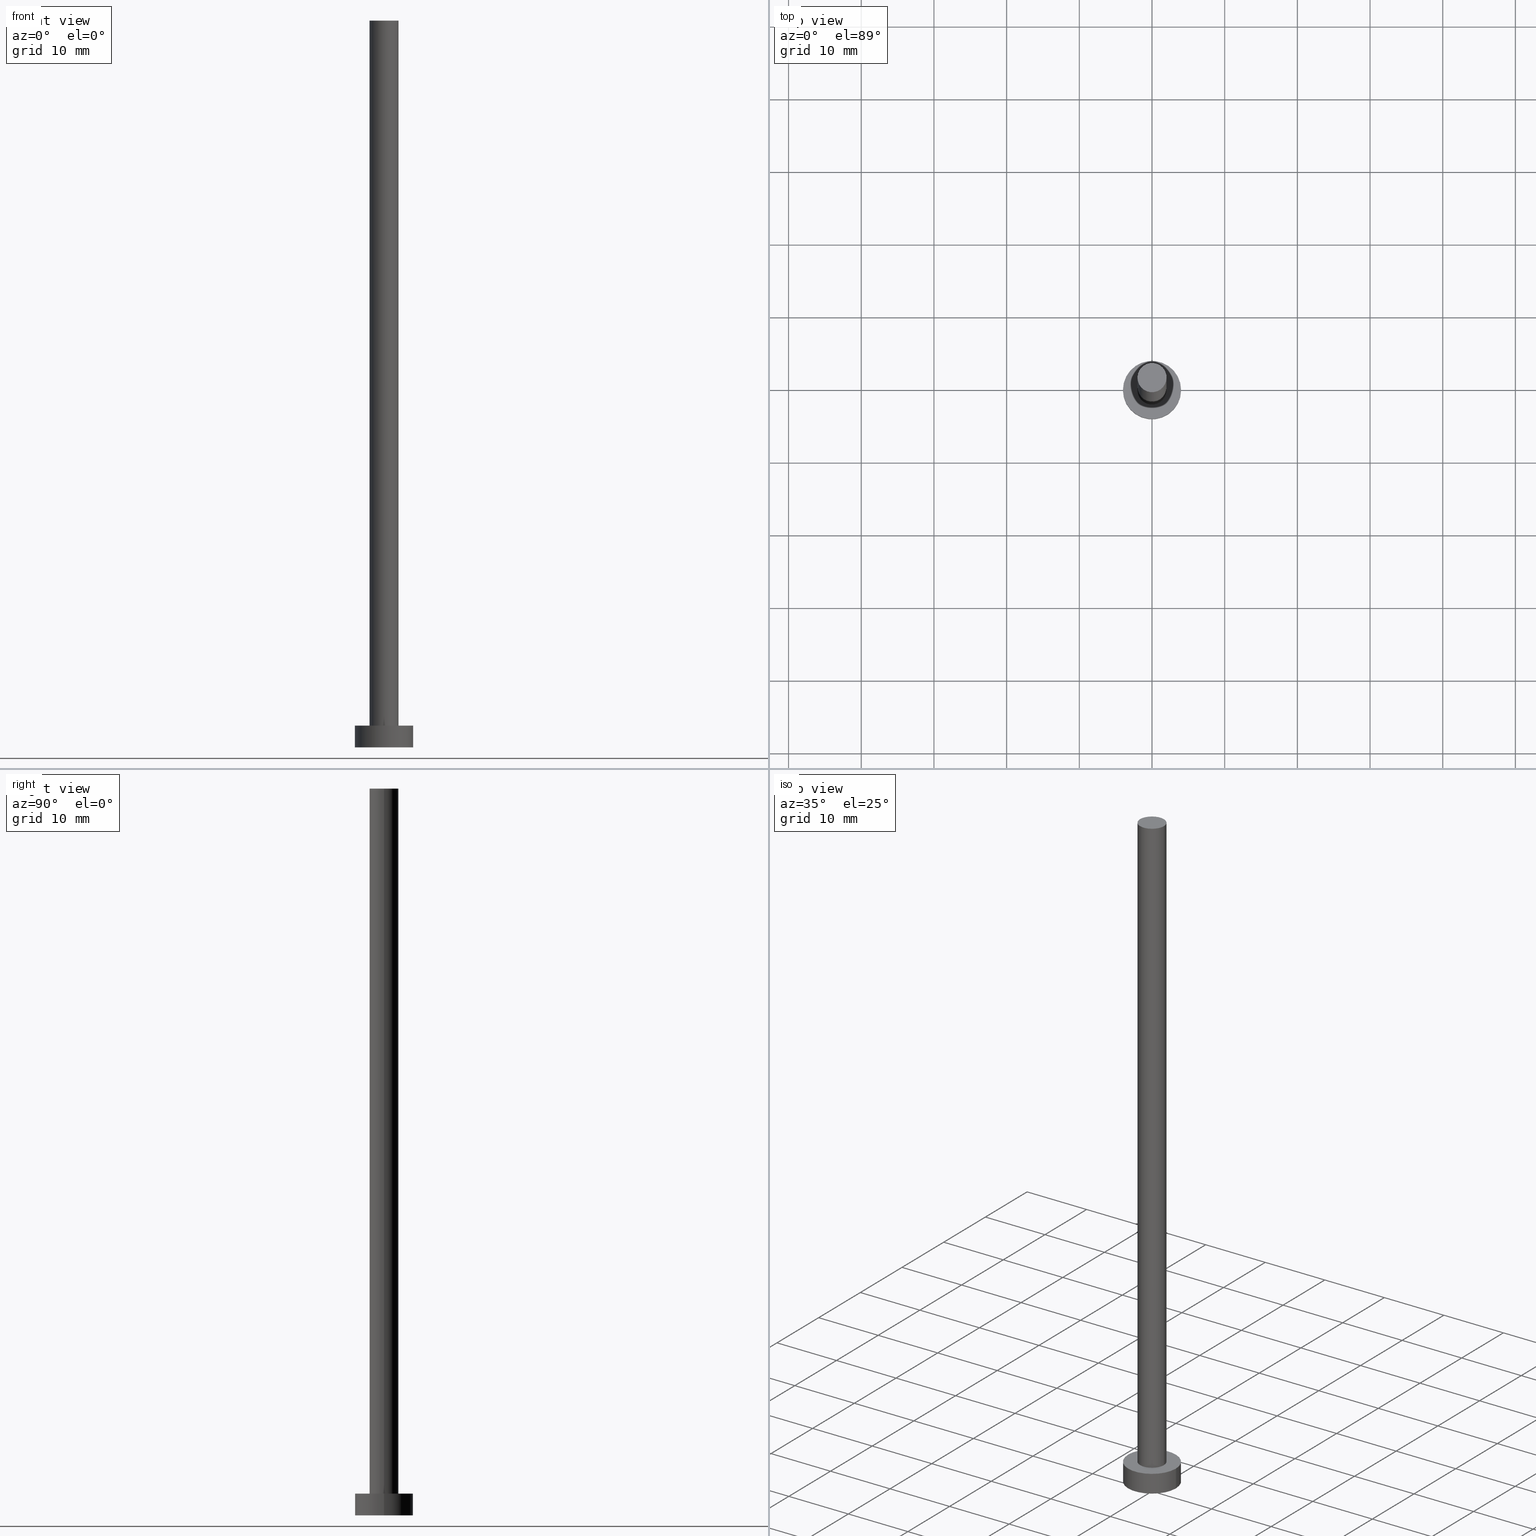
[diagram: canonical four-view strip — front | top / right | iso, engineering-drawing reading convention]
A machine part, canonical four-view strip (front | top / right | iso — engineering-drawing reading convention). The complete STEP part file that produces these views, byte-faithful:
ISO-10303-21;
HEADER;
FILE_DESCRIPTION (( 'STEP AP203' ),
    '1' );
FILE_NAME ('f526.STEP',
    '2023-02-13T13:58:17',
    ( '' ),
    ( '' ),
    'SwSTEP 2.0',
    'SolidWorks 2019',
    '' );
FILE_SCHEMA (( 'CONFIG_CONTROL_DESIGN' ));
ENDSEC;

DATA;
#1 = ADVANCED_FACE ( 'NONE', ( #75 ), #153, .T. ) ;
#2 = FACE_OUTER_BOUND ( 'NONE', #51, .T. ) ;
#3 = CIRCLE ( 'NONE', #9, 2.000000000000000000 ) ;
#4 = ORIENTED_EDGE ( 'NONE', *, *, #207, .T. ) ;
#5 = CALENDAR_DATE ( 2023, 13, 2 ) ;
#6 = EDGE_CURVE ( 'NONE', #206, #149, #164, .T. ) ;
#7 = VECTOR ( 'NONE', #138, 1000.000000000000000 ) ;
#8 = ORIENTED_EDGE ( 'NONE', *, *, #6, .T. ) ;
#9 = AXIS2_PLACEMENT_3D ( 'NONE', #111, #126, #186 ) ;
#10 = CARTESIAN_POINT ( 'NONE',  ( 2.000000000000000000, 2.449293598294705921E-16, 100.0000000000000000 ) ) ;
#11 = EDGE_CURVE ( 'NONE', #173, #152, #39, .T. ) ;
#12 = ORIENTED_EDGE ( 'NONE', *, *, #143, .T. ) ;
#13 = EDGE_CURVE ( 'NONE', #149, #152, #127, .T. ) ;
#14 = UNCERTAINTY_MEASURE_WITH_UNIT (LENGTH_MEASURE( 1.000000000000000082E-05 ), #82, 'distance_accuracy_value', 'NONE');
#15 = DIRECTION ( 'NONE',  ( -1.000000000000000000, 0.000000000000000000, 0.000000000000000000 ) ) ;
#16 = DATE_AND_TIME ( #33, #226 ) ;
#17 = CARTESIAN_POINT ( 'NONE',  ( 0.000000000000000000, 0.000000000000000000, 0.000000000000000000 ) ) ;
#18 = APPROVAL_DATE_TIME ( #16, #221 ) ;
#19 = DIRECTION ( 'NONE',  ( 1.000000000000000000, 0.000000000000000000, 0.000000000000000000 ) ) ;
#20 = MANIFOLD_SOLID_BREP ( 'P�idat vysunut�m3', #234 ) ;
#21 = CC_DESIGN_APPROVAL ( #221, ( #136 ) ) ;
#22 = AXIS2_PLACEMENT_3D ( 'NONE', #117, #140, #200 ) ;
#23 = EDGE_LOOP ( 'NONE', ( #144, #67, #209, #28 ) ) ;
#24 = DATE_TIME_ROLE ( 'classification_date' ) ;
#25 = DIRECTION ( 'NONE',  ( 1.000000000000000000, 0.000000000000000000, 0.000000000000000000 ) ) ;
#26 = AXIS2_PLACEMENT_3D ( 'NONE', #155, #254, #215 ) ;
#27 = ORIENTED_EDGE ( 'NONE', *, *, #143, .F. ) ;
#28 = ORIENTED_EDGE ( 'NONE', *, *, #122, .F. ) ;
#29 = CARTESIAN_POINT ( 'NONE',  ( -4.000000000000000000, 0.000000000000000000, 0.000000000000000000 ) ) ;
#30 = ORIENTED_EDGE ( 'NONE', *, *, #13, .T. ) ;
#31 = CYLINDRICAL_SURFACE ( 'NONE', #95, 4.000000000000000000 ) ;
#32 = CARTESIAN_POINT ( 'NONE',  ( 4.000000000000000000, 4.898587196589412829E-16, 3.000000000000000000 ) ) ;
#33 = CALENDAR_DATE ( 2023, 13, 2 ) ;
#34 = VECTOR ( 'NONE', #196, 1000.000000000000000 ) ;
#35 = DIRECTION ( 'NONE',  ( -0.000000000000000000, -0.000000000000000000, -1.000000000000000000 ) ) ;
#36 =( NAMED_UNIT ( * ) PLANE_ANGLE_UNIT ( ) SI_UNIT ( $, .RADIAN. ) );
#37 = DIRECTION ( 'NONE',  ( -0.000000000000000000, -0.000000000000000000, -1.000000000000000000 ) ) ;
#38 = APPROVAL ( #208, 'NEUR�EN�' ) ;
#39 = CIRCLE ( 'NONE', #205, 2.000000000000000000 ) ;
#40 = DATE_AND_TIME ( #45, #224 ) ;
#41 = ORIENTED_EDGE ( 'NONE', *, *, #122, .T. ) ;
#42 = PRODUCT ( 'f526', 'f526', '', ( #101 ) ) ;
#43 = ORIENTED_EDGE ( 'NONE', *, *, #11, .F. ) ;
#44 = DATE_AND_TIME ( #185, #220 ) ;
#45 = CALENDAR_DATE ( 2023, 13, 2 ) ;
#46 = VERTEX_POINT ( 'NONE', #29 ) ;
#47 = EDGE_CURVE ( 'NONE', #162, #147, #65, .T. ) ;
#48 = ORIENTED_EDGE ( 'NONE', *, *, #61, .F. ) ;
#49 = SECURITY_CLASSIFICATION_LEVEL ( 'unclassified' ) ;
#50 = LOCAL_TIME ( 14, 58, 17.00000000000000000, #179 ) ;
#51 = EDGE_LOOP ( 'NONE', ( #71, #128, #203, #242 ) ) ;
#52 = CARTESIAN_POINT ( 'NONE',  ( 0.000000000000000000, 0.000000000000000000, 3.000000000000000000 ) ) ;
#53 = CC_DESIGN_PERSON_AND_ORGANIZATION_ASSIGNMENT ( #63, #99, ( #136 ) ) ;
#54 = FACE_OUTER_BOUND ( 'NONE', #182, .T. ) ;
#55 = PERSON_AND_ORGANIZATION_ROLE ( 'design_owner' ) ;
#56 = CARTESIAN_POINT ( 'NONE',  ( 0.000000000000000000, 0.000000000000000000, 0.000000000000000000 ) ) ;
#57 = FACE_OUTER_BOUND ( 'NONE', #89, .T. ) ;
#58 = AXIS2_PLACEMENT_3D ( 'NONE', #17, #68, #85 ) ;
#59 = DESIGN_CONTEXT ( 'detailed design', #113, 'design' ) ;
#60 = PERSON_AND_ORGANIZATION ( #141, #165 ) ;
#61 = EDGE_CURVE ( 'NONE', #152, #173, #3, .T. ) ;
#62 = DIRECTION ( 'NONE',  ( 1.000000000000000000, 0.000000000000000000, -0.000000000000000000 ) ) ;
#63 = PERSON_AND_ORGANIZATION ( #141, #165 ) ;
#64 = APPROVAL ( #118, 'NEUR�EN�' ) ;
#65 = CIRCLE ( 'NONE', #230, 4.000000000000000000 ) ;
#66 = PERSON_AND_ORGANIZATION_ROLE ( 'classification_officer' ) ;
#67 = ORIENTED_EDGE ( 'NONE', *, *, #103, .T. ) ;
#68 = DIRECTION ( 'NONE',  ( 0.000000000000000000, 0.000000000000000000, 1.000000000000000000 ) ) ;
#69 = CARTESIAN_POINT ( 'NONE',  ( 0.000000000000000000, 0.000000000000000000, 100.0000000000000000 ) ) ;
#70 = PERSON_AND_ORGANIZATION ( #141, #165 ) ;
#71 = ORIENTED_EDGE ( 'NONE', *, *, #6, .F. ) ;
#72 = VERTEX_POINT ( 'NONE', #214 ) ;
#73 = AXIS2_PLACEMENT_3D ( 'NONE', #238, #37, #132 ) ;
#74 = DIRECTION ( 'NONE',  ( 0.000000000000000000, 0.000000000000000000, 1.000000000000000000 ) ) ;
#75 = FACE_OUTER_BOUND ( 'NONE', #112, .T. ) ;
#76 = FACE_OUTER_BOUND ( 'NONE', #145, .T. ) ;
#77 = PERSON_AND_ORGANIZATION_ROLE ( 'design_supplier' ) ;
#78 = DIRECTION ( 'NONE',  ( 1.000000000000000000, 0.000000000000000000, 0.000000000000000000 ) ) ;
#79 = APPLICATION_PROTOCOL_DEFINITION ( 'international standard', 'config_control_design', 1994, #113 ) ;
#80 = COORDINATED_UNIVERSAL_TIME_OFFSET ( 1, 0, .AHEAD. ) ;
#81 = PLANE ( 'NONE',  #146 ) ;
#82 =( LENGTH_UNIT ( ) NAMED_UNIT ( * ) SI_UNIT ( .MILLI., .METRE. ) );
#83 = CALENDAR_DATE ( 2023, 13, 2 ) ;
#84 =( GEOMETRIC_REPRESENTATION_CONTEXT ( 3 ) GLOBAL_UNCERTAINTY_ASSIGNED_CONTEXT ( ( #14 ) ) GLOBAL_UNIT_ASSIGNED_CONTEXT ( ( #82, #36, #116 ) ) REPRESENTATION_CONTEXT ( 'NONE', 'WORKASPACE' ) );
#85 = DIRECTION ( 'NONE',  ( 1.000000000000000000, 0.000000000000000000, -0.000000000000000000 ) ) ;
#86 = VECTOR ( 'NONE', #210, 1000.000000000000000 ) ;
#87 = LOCAL_TIME ( 14, 58, 17.00000000000000000, #181 ) ;
#88 = PERSON_AND_ORGANIZATION ( #141, #165 ) ;
#89 = EDGE_LOOP ( 'NONE', ( #171, #246 ) ) ;
#90 = PRODUCT_RELATED_PRODUCT_CATEGORY ( 'detail', '', ( #42 ) ) ;
#91 = CIRCLE ( 'NONE', #190, 4.000000000000000000 ) ;
#92 = DIRECTION ( 'NONE',  ( -1.000000000000000000, 0.000000000000000000, 0.000000000000000000 ) ) ;
#93 = AXIS2_PLACEMENT_3D ( 'NONE', #193, #189, #78 ) ;
#94 = PERSON_AND_ORGANIZATION ( #141, #165 ) ;
#95 = AXIS2_PLACEMENT_3D ( 'NONE', #154, #237, #233 ) ;
#96 = CARTESIAN_POINT ( 'NONE',  ( 0.000000000000000000, 0.000000000000000000, 0.000000000000000000 ) ) ;
#97 = EDGE_CURVE ( 'NONE', #206, #173, #227, .T. ) ;
#98 = DIRECTION ( 'NONE',  ( 0.000000000000000000, 0.000000000000000000, 1.000000000000000000 ) ) ;
#99 = PERSON_AND_ORGANIZATION_ROLE ( 'creator' ) ;
#100 = CARTESIAN_POINT ( 'NONE',  ( -4.000000000000000000, 0.000000000000000000, 3.000000000000000000 ) ) ;
#101 = MECHANICAL_CONTEXT ( 'NONE', #198, 'mechanical' ) ;
#102 = PLANE ( 'NONE',  #58 ) ;
#103 = EDGE_CURVE ( 'NONE', #162, #72, #249, .T. ) ;
#104 = DATE_AND_TIME ( #5, #50 ) ;
#105 = CC_DESIGN_APPROVAL ( #38, ( #109 ) ) ;
#106 = PERSON_AND_ORGANIZATION ( #141, #165 ) ;
#107 = DIRECTION ( 'NONE',  ( 0.000000000000000000, 0.000000000000000000, 1.000000000000000000 ) ) ;
#108 = CARTESIAN_POINT ( 'NONE',  ( 0.000000000000000000, 0.000000000000000000, 3.000000000000000000 ) ) ;
#109 = SECURITY_CLASSIFICATION ( '', '', #49 ) ;
#110 = EDGE_LOOP ( 'NONE', ( #12, #8 ) ) ;
#111 = CARTESIAN_POINT ( 'NONE',  ( 0.000000000000000000, 0.000000000000000000, 3.000000000000000000 ) ) ;
#112 = EDGE_LOOP ( 'NONE', ( #124, #27, #30, #168 ) ) ;
#113 = APPLICATION_CONTEXT ( 'configuration controlled 3d designs of mechanical parts and assemblies' ) ;
#114 = APPROVAL_PERSON_ORGANIZATION ( #60, #221, #217 ) ;
#115 = DIRECTION ( 'NONE',  ( 0.000000000000000000, 0.000000000000000000, 1.000000000000000000 ) ) ;
#116 =( NAMED_UNIT ( * ) SI_UNIT ( $, .STERADIAN. ) SOLID_ANGLE_UNIT ( ) );
#117 = CARTESIAN_POINT ( 'NONE',  ( 0.000000000000000000, 0.000000000000000000, 100.0000000000000000 ) ) ;
#118 = APPROVAL_STATUS ( 'not_yet_approved' ) ;
#119 = CARTESIAN_POINT ( 'NONE',  ( 4.000000000000000000, 4.898587196589412829E-16, 3.000000000000000000 ) ) ;
#120 = CARTESIAN_POINT ( 'NONE',  ( 2.000000000000000000, 2.449293598294705921E-16, 3.000000000000000000 ) ) ;
#121 = AXIS2_PLACEMENT_3D ( 'NONE', #137, #115, #19 ) ;
#122 = EDGE_CURVE ( 'NONE', #147, #46, #236, .T. ) ;
#123 = FACE_OUTER_BOUND ( 'NONE', #110, .T. ) ;
#124 = ORIENTED_EDGE ( 'NONE', *, *, #97, .F. ) ;
#125 = SHAPE_DEFINITION_REPRESENTATION ( #170, #204 ) ;
#126 = DIRECTION ( 'NONE',  ( 0.000000000000000000, 0.000000000000000000, 1.000000000000000000 ) ) ;
#127 = LINE ( 'NONE', #131, #86 ) ;
#128 = ORIENTED_EDGE ( 'NONE', *, *, #97, .T. ) ;
#129 = CARTESIAN_POINT ( 'NONE',  ( 0.000000000000000000, 0.000000000000000000, 100.0000000000000000 ) ) ;
#130 = ORIENTED_EDGE ( 'NONE', *, *, #139, .F. ) ;
#131 = CARTESIAN_POINT ( 'NONE',  ( -2.000000000000000000, 0.000000000000000000, 100.0000000000000000 ) ) ;
#132 = DIRECTION ( 'NONE',  ( -1.000000000000000000, 0.000000000000000000, 0.000000000000000000 ) ) ;
#133 = ADVANCED_FACE ( 'NONE', ( #2 ), #176, .T. ) ;
#134 = DIRECTION ( 'NONE',  ( 1.000000000000000000, 0.000000000000000000, 0.000000000000000000 ) ) ;
#135 = AXIS2_PLACEMENT_3D ( 'NONE', #231, #194, #15 ) ;
#136 = PRODUCT_DEFINITION ( 'NEZN�M�', '', #178, #59 ) ;
#137 = CARTESIAN_POINT ( 'NONE',  ( 0.000000000000000000, 0.000000000000000000, 0.000000000000000000 ) ) ;
#138 = DIRECTION ( 'NONE',  ( -0.000000000000000000, -0.000000000000000000, -1.000000000000000000 ) ) ;
#139 = EDGE_CURVE ( 'NONE', #147, #162, #219, .T. ) ;
#140 = DIRECTION ( 'NONE',  ( 0.000000000000000000, 0.000000000000000000, 1.000000000000000000 ) ) ;
#141 = PERSON ( 'NEUR�EN�', 'NEUR�EN�', 'NEUR�EN�', ('NEUR�EN�'), ('NEUR�EN�'), ('NEUR�EN�') ) ;
#142 = FACE_OUTER_BOUND ( 'NONE', #23, .T. ) ;
#143 = EDGE_CURVE ( 'NONE', #149, #206, #239, .T. ) ;
#144 = ORIENTED_EDGE ( 'NONE', *, *, #47, .F. ) ;
#145 = EDGE_LOOP ( 'NONE', ( #240, #130, #41, #4 ) ) ;
#146 = AXIS2_PLACEMENT_3D ( 'NONE', #159, #216, #62 ) ;
#147 = VERTEX_POINT ( 'NONE', #192 ) ;
#148 = COORDINATED_UNIVERSAL_TIME_OFFSET ( 1, 0, .AHEAD. ) ;
#149 = VERTEX_POINT ( 'NONE', #175 ) ;
#150 = VECTOR ( 'NONE', #35, 1000.000000000000000 ) ;
#151 = APPROVAL_DATE_TIME ( #40, #38 ) ;
#152 = VERTEX_POINT ( 'NONE', #251 ) ;
#153 = CYLINDRICAL_SURFACE ( 'NONE', #195, 2.000000000000000000 ) ;
#154 = CARTESIAN_POINT ( 'NONE',  ( 0.000000000000000000, 0.000000000000000000, 3.000000000000000000 ) ) ;
#155 = CARTESIAN_POINT ( 'NONE',  ( 0.000000000000000000, 0.000000000000000000, 100.0000000000000000 ) ) ;
#156 = ADVANCED_FACE ( 'NONE', ( #157, #57 ), #81, .T. ) ;
#157 = FACE_BOUND ( 'NONE', #241, .T. ) ;
#158 = CC_DESIGN_APPROVAL ( #64, ( #178 ) ) ;
#159 = CARTESIAN_POINT ( 'NONE',  ( 0.000000000000000000, 0.000000000000000000, 3.000000000000000000 ) ) ;
#160 = AXIS2_PLACEMENT_3D ( 'NONE', #69, #74, #172 ) ;
#161 = APPROVAL_DATE_TIME ( #199, #64 ) ;
#162 = VERTEX_POINT ( 'NONE', #119 ) ;
#163 = CC_DESIGN_PERSON_AND_ORGANIZATION_ASSIGNMENT ( #106, #66, ( #109 ) ) ;
#164 = CIRCLE ( 'NONE', #160, 2.000000000000000000 ) ;
#165 = ORGANIZATION ( 'NEUR�EN�', 'NEUR�EN�', '' ) ;
#166 = ADVANCED_FACE ( 'NONE', ( #123 ), #225, .T. ) ;
#167 = APPROVAL_ROLE ( '' ) ;
#168 = ORIENTED_EDGE ( 'NONE', *, *, #61, .T. ) ;
#169 = APPROVAL_PERSON_ORGANIZATION ( #70, #38, #167 ) ;
#170 = PRODUCT_DEFINITION_SHAPE ( 'NONE', 'NONE',  #136 ) ;
#171 = ORIENTED_EDGE ( 'NONE', *, *, #139, .T. ) ;
#172 = DIRECTION ( 'NONE',  ( 1.000000000000000000, 0.000000000000000000, 0.000000000000000000 ) ) ;
#173 = VERTEX_POINT ( 'NONE', #120 ) ;
#174 = CC_DESIGN_PERSON_AND_ORGANIZATION_ASSIGNMENT ( #94, #77, ( #178 ) ) ;
#175 = CARTESIAN_POINT ( 'NONE',  ( -2.000000000000000000, 0.000000000000000000, 100.0000000000000000 ) ) ;
#176 = CYLINDRICAL_SURFACE ( 'NONE', #73, 2.000000000000000000 ) ;
#177 = DIRECTION ( 'NONE',  ( 1.000000000000000000, 0.000000000000000000, 0.000000000000000000 ) ) ;
#178 = PRODUCT_DEFINITION_FORMATION_WITH_SPECIFIED_SOURCE ( 'LIBOVOLN�', '', #42, .NOT_KNOWN. ) ;
#179 = COORDINATED_UNIVERSAL_TIME_OFFSET ( 1, 0, .AHEAD. ) ;
#180 = CC_DESIGN_PERSON_AND_ORGANIZATION_ASSIGNMENT ( #88, #212, ( #178 ) ) ;
#181 = COORDINATED_UNIVERSAL_TIME_OFFSET ( 1, 0, .AHEAD. ) ;
#182 = EDGE_LOOP ( 'NONE', ( #201, #247 ) ) ;
#183 = ADVANCED_FACE ( 'NONE', ( #142 ), #252, .T. ) ;
#184 = PERSON_AND_ORGANIZATION ( #141, #165 ) ;
#185 = CALENDAR_DATE ( 2023, 13, 2 ) ;
#186 = DIRECTION ( 'NONE',  ( 1.000000000000000000, 0.000000000000000000, 0.000000000000000000 ) ) ;
#187 = CC_DESIGN_DATE_AND_TIME_ASSIGNMENT ( #44, #24, ( #109 ) ) ;
#188 = CC_DESIGN_SECURITY_CLASSIFICATION ( #109, ( #178 ) ) ;
#189 = DIRECTION ( 'NONE',  ( 0.000000000000000000, 0.000000000000000000, 1.000000000000000000 ) ) ;
#190 = AXIS2_PLACEMENT_3D ( 'NONE', #96, #213, #134 ) ;
#191 = CARTESIAN_POINT ( 'NONE',  ( 2.000000000000000000, 2.449293598294705921E-16, 100.0000000000000000 ) ) ;
#192 = CARTESIAN_POINT ( 'NONE',  ( -4.000000000000000000, 0.000000000000000000, 3.000000000000000000 ) ) ;
#193 = CARTESIAN_POINT ( 'NONE',  ( 0.000000000000000000, 0.000000000000000000, 3.000000000000000000 ) ) ;
#194 = DIRECTION ( 'NONE',  ( -0.000000000000000000, -0.000000000000000000, -1.000000000000000000 ) ) ;
#195 = AXIS2_PLACEMENT_3D ( 'NONE', #129, #232, #92 ) ;
#196 = DIRECTION ( 'NONE',  ( -0.000000000000000000, -0.000000000000000000, -1.000000000000000000 ) ) ;
#197 = APPROVAL_PERSON_ORGANIZATION ( #184, #64, #222 ) ;
#198 = APPLICATION_CONTEXT ( 'configuration controlled 3d designs of mechanical parts and assemblies' ) ;
#199 = DATE_AND_TIME ( #83, #87 ) ;
#200 = DIRECTION ( 'NONE',  ( 1.000000000000000000, 0.000000000000000000, -0.000000000000000000 ) ) ;
#201 = ORIENTED_EDGE ( 'NONE', *, *, #207, .F. ) ;
#202 = DATE_TIME_ROLE ( 'creation_date' ) ;
#203 = ORIENTED_EDGE ( 'NONE', *, *, #11, .T. ) ;
#204 = ADVANCED_BREP_SHAPE_REPRESENTATION ( 'f526', ( #20, #121 ), #84 ) ;
#205 = AXIS2_PLACEMENT_3D ( 'NONE', #52, #229, #244 ) ;
#206 = VERTEX_POINT ( 'NONE', #191 ) ;
#207 = EDGE_CURVE ( 'NONE', #46, #72, #255, .T. ) ;
#208 = APPROVAL_STATUS ( 'not_yet_approved' ) ;
#209 = ORIENTED_EDGE ( 'NONE', *, *, #211, .T. ) ;
#210 = DIRECTION ( 'NONE',  ( -0.000000000000000000, -0.000000000000000000, -1.000000000000000000 ) ) ;
#211 = EDGE_CURVE ( 'NONE', #72, #46, #91, .T. ) ;
#212 = PERSON_AND_ORGANIZATION_ROLE ( 'creator' ) ;
#213 = DIRECTION ( 'NONE',  ( 0.000000000000000000, 0.000000000000000000, 1.000000000000000000 ) ) ;
#214 = CARTESIAN_POINT ( 'NONE',  ( 4.000000000000000000, 4.898587196589412829E-16, 0.000000000000000000 ) ) ;
#215 = DIRECTION ( 'NONE',  ( 1.000000000000000000, 0.000000000000000000, 0.000000000000000000 ) ) ;
#216 = DIRECTION ( 'NONE',  ( 0.000000000000000000, 0.000000000000000000, 1.000000000000000000 ) ) ;
#217 = APPROVAL_ROLE ( '' ) ;
#218 = CC_DESIGN_PERSON_AND_ORGANIZATION_ASSIGNMENT ( #250, #55, ( #42 ) ) ;
#219 = CIRCLE ( 'NONE', #93, 4.000000000000000000 ) ;
#220 = LOCAL_TIME ( 14, 58, 17.00000000000000000, #148 ) ;
#221 = APPROVAL ( #253, 'NEUR�EN�' ) ;
#222 = APPROVAL_ROLE ( '' ) ;
#223 = ADVANCED_FACE ( 'NONE', ( #76 ), #31, .T. ) ;
#224 = LOCAL_TIME ( 14, 58, 17.00000000000000000, #243 ) ;
#225 = PLANE ( 'NONE',  #22 ) ;
#226 = LOCAL_TIME ( 14, 58, 17.00000000000000000, #80 ) ;
#227 = LINE ( 'NONE', #10, #7 ) ;
#228 = CC_DESIGN_DATE_AND_TIME_ASSIGNMENT ( #104, #202, ( #136 ) ) ;
#229 = DIRECTION ( 'NONE',  ( 0.000000000000000000, 0.000000000000000000, 1.000000000000000000 ) ) ;
#230 = AXIS2_PLACEMENT_3D ( 'NONE', #108, #107, #25 ) ;
#231 = CARTESIAN_POINT ( 'NONE',  ( 0.000000000000000000, 0.000000000000000000, 3.000000000000000000 ) ) ;
#232 = DIRECTION ( 'NONE',  ( -0.000000000000000000, -0.000000000000000000, -1.000000000000000000 ) ) ;
#233 = DIRECTION ( 'NONE',  ( -1.000000000000000000, 0.000000000000000000, 0.000000000000000000 ) ) ;
#234 = CLOSED_SHELL ( 'NONE', ( #133, #183, #223, #156, #235, #1, #166 ) ) ;
#235 = ADVANCED_FACE ( 'NONE', ( #54 ), #102, .F. ) ;
#236 = LINE ( 'NONE', #100, #34 ) ;
#237 = DIRECTION ( 'NONE',  ( -0.000000000000000000, -0.000000000000000000, -1.000000000000000000 ) ) ;
#238 = CARTESIAN_POINT ( 'NONE',  ( 0.000000000000000000, 0.000000000000000000, 100.0000000000000000 ) ) ;
#239 = CIRCLE ( 'NONE', #26, 2.000000000000000000 ) ;
#240 = ORIENTED_EDGE ( 'NONE', *, *, #103, .F. ) ;
#241 = EDGE_LOOP ( 'NONE', ( #48, #43 ) ) ;
#242 = ORIENTED_EDGE ( 'NONE', *, *, #13, .F. ) ;
#243 = COORDINATED_UNIVERSAL_TIME_OFFSET ( 1, 0, .AHEAD. ) ;
#244 = DIRECTION ( 'NONE',  ( 1.000000000000000000, 0.000000000000000000, 0.000000000000000000 ) ) ;
#245 = APPLICATION_PROTOCOL_DEFINITION ( 'international standard', 'config_control_design', 1994, #198 ) ;
#246 = ORIENTED_EDGE ( 'NONE', *, *, #47, .T. ) ;
#247 = ORIENTED_EDGE ( 'NONE', *, *, #211, .F. ) ;
#248 = AXIS2_PLACEMENT_3D ( 'NONE', #56, #98, #177 ) ;
#249 = LINE ( 'NONE', #32, #150 ) ;
#250 = PERSON_AND_ORGANIZATION ( #141, #165 ) ;
#251 = CARTESIAN_POINT ( 'NONE',  ( -2.000000000000000000, 0.000000000000000000, 3.000000000000000000 ) ) ;
#252 = CYLINDRICAL_SURFACE ( 'NONE', #135, 4.000000000000000000 ) ;
#253 = APPROVAL_STATUS ( 'not_yet_approved' ) ;
#254 = DIRECTION ( 'NONE',  ( 0.000000000000000000, 0.000000000000000000, 1.000000000000000000 ) ) ;
#255 = CIRCLE ( 'NONE', #248, 4.000000000000000000 ) ;
ENDSEC;
END-ISO-10303-21;
